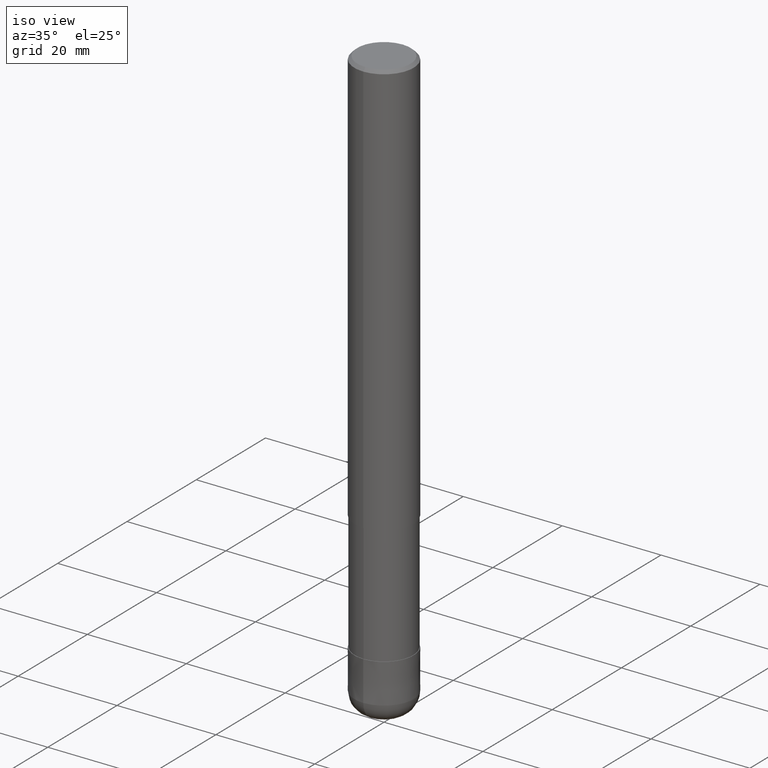
[diagram: clean part render]
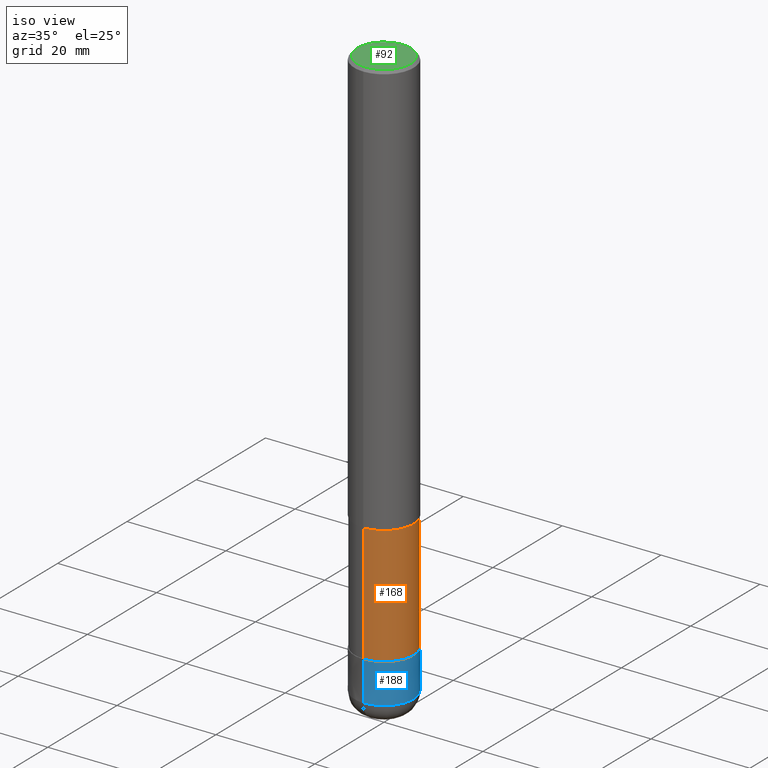
[diagram: same view with three faces highlighted in distinct colors, each labeled with its STEP entity id]
A machine part, iso view with three faces highlighted in distinct colors.
Their STEP definitions:

[orange] entity #168 — the highlighted cylindrical surface (edge-blend (fillet) strip) has radius 5.91 mm, axis along (-0, -0, 1).
#140=EDGE_CURVE('',#208,#144,#283,.T.);
#144=VERTEX_POINT('',#287);
#150=EDGE_CURVE('',#206,#144,#294,.T.);
#168=ADVANCED_FACE('',(#313),#314,.T.);
#170=EDGE_CURVE('',#174,#206,#316,.T.);
#174=VERTEX_POINT('',#322);
#182=EDGE_CURVE('',#208,#174,#331,.T.);
#206=VERTEX_POINT('',#359);
#208=VERTEX_POINT('',#361);
#283=CIRCLE('',#442,5.90995);
#287=CARTESIAN_POINT('',(7.23736232077256E-016,-5.90995,-84.0));
#294=LINE('',#455,#456);
#313=FACE_OUTER_BOUND('',#478,.T.);
#314=CYLINDRICAL_SURFACE('',#479,5.90995);
#316=CIRCLE('',#482,5.90995);
#322=CARTESIAN_POINT('',(0.0,5.90995,-108.0));
#331=LINE('',#499,#500);
#359=CARTESIAN_POINT('',(7.23736232077256E-016,-5.90995,-108.0));
#361=CARTESIAN_POINT('',(0.0,5.90995,-84.0));
#442=AXIS2_PLACEMENT_3D('',#614,#615,#616);
#455=CARTESIAN_POINT('',(7.23736232077256E-016,-5.90995,-96.0));
#456=VECTOR('',#628,1.0);
#478=EDGE_LOOP('',(#644,#645,#646,#647));
#479=AXIS2_PLACEMENT_3D('',#648,#649,#650);
#482=AXIS2_PLACEMENT_3D('',#651,#652,#653);
#499=CARTESIAN_POINT('',(-7.23736232077256E-016,5.90995,-96.0));
#500=VECTOR('',#673,1.0);
#614=CARTESIAN_POINT('',(0.0,0.0,-84.0));
#615=DIRECTION('',(0.0,0.0,-1.0));
#616=DIRECTION('',(0.0,1.0,0.0));
#628=DIRECTION('',(-0.0,-0.0,1.0));
#644=ORIENTED_EDGE('',*,*,#182,.F.);
#645=ORIENTED_EDGE('',*,*,#140,.T.);
#646=ORIENTED_EDGE('',*,*,#150,.F.);
#647=ORIENTED_EDGE('',*,*,#170,.F.);
#648=CARTESIAN_POINT('',(0.0,0.0,-96.0));
#649=DIRECTION('',(-0.0,-0.0,1.0));
#650=DIRECTION('',(0.0,1.0,0.0));
#651=CARTESIAN_POINT('',(0.0,0.0,-108.0));
#652=DIRECTION('',(0.0,0.0,-1.0));
#653=DIRECTION('',(0.0,1.0,0.0));
#673=DIRECTION('',(0.0,0.0,-1.0));

[blue] entity #188 — the highlighted conical surface has half-angle 0.001 deg.
#106=EDGE_CURVE('',#156,#108,#245,.T.);
#108=VERTEX_POINT('',#247);
#110=EDGE_CURVE('',#108,#118,#249,.T.);
#118=VERTEX_POINT('',#257);
#134=VERTEX_POINT('',#276);
#156=VERTEX_POINT('',#301);
#166=EDGE_CURVE('',#134,#156,#311,.T.);
#188=ADVANCED_FACE('',(#337),#338,.T.);
#198=EDGE_CURVE('',#134,#118,#350,.T.);
#245=CIRCLE('',#392,6.0);
#247=CARTESIAN_POINT('',(7.34763812293427E-016,-6.0,-116.0));
#249=LINE('',#397,#398);
#257=CARTESIAN_POINT('',(7.34751566229888E-016,-5.9999,-108.0));
#276=CARTESIAN_POINT('',(0.0,5.9999,-108.0));
#301=CARTESIAN_POINT('',(0.0,6.0,-116.0));
#311=LINE('',#475,#476);
#337=FACE_OUTER_BOUND('',#507,.T.);
#338=CONICAL_SURFACE('',#508,5.99995,1.24999999993198E-005);
#350=CIRCLE('',#524,5.9999);
#392=AXIS2_PLACEMENT_3D('',#561,#562,#563);
#397=CARTESIAN_POINT('',(7.34757689261657E-016,-5.99995,-112.0));
#398=VECTOR('',#564,1.0);
#475=CARTESIAN_POINT('',(-7.34757689261657E-016,5.99995,-112.0));
#476=VECTOR('',#642,1.0);
#507=EDGE_LOOP('',(#678,#679,#680,#681));
#508=AXIS2_PLACEMENT_3D('',#682,#683,#684);
#524=AXIS2_PLACEMENT_3D('',#703,#704,#705);
#561=CARTESIAN_POINT('',(0.0,0.0,-116.0));
#562=DIRECTION('',(0.0,0.0,-1.0));
#563=DIRECTION('',(0.0,1.0,0.0));
#564=DIRECTION('',(-1.53075794215481E-021,1.24999999989943E-005,0.999999999921875));
#642=DIRECTION('',(-1.53075794215481E-021,1.24999999989943E-005,-0.999999999921875));
#678=ORIENTED_EDGE('',*,*,#166,.F.);
#679=ORIENTED_EDGE('',*,*,#198,.T.);
#680=ORIENTED_EDGE('',*,*,#110,.F.);
#681=ORIENTED_EDGE('',*,*,#106,.F.);
#682=CARTESIAN_POINT('',(0.0,0.0,-112.0));
#683=DIRECTION('',(0.0,-0.0,-1.0));
#684=DIRECTION('',(0.0,1.0,0.0));
#703=CARTESIAN_POINT('',(0.0,0.0,-108.0));
#704=DIRECTION('',(0.0,0.0,-1.0));
#705=DIRECTION('',(0.0,1.0,0.0));

[green] entity #92 — the highlighted planar face has unit normal (-0, 0, 1).
#92=ADVANCED_FACE('',(#229),#230,.T.);
#114=VERTEX_POINT('',#253);
#158=VERTEX_POINT('',#303);
#164=EDGE_CURVE('',#158,#114,#309,.T.);
#194=EDGE_CURVE('',#114,#158,#345,.T.);
#229=FACE_OUTER_BOUND('',#374,.T.);
#230=PLANE('',#375);
#253=CARTESIAN_POINT('',(0.0,5.4,0.0));
#303=CARTESIAN_POINT('',(6.61287431064084E-016,-5.4,0.0));
#309=CIRCLE('',#472,5.4);
#345=CIRCLE('',#518,5.4);
#374=EDGE_LOOP('',(#541,#542));
#375=AXIS2_PLACEMENT_3D('',#543,#544,#545);
#472=AXIS2_PLACEMENT_3D('',#639,#640,#641);
#518=AXIS2_PLACEMENT_3D('',#692,#693,#694);
#541=ORIENTED_EDGE('',*,*,#194,.F.);
#542=ORIENTED_EDGE('',*,*,#164,.F.);
#543=CARTESIAN_POINT('',(0.0,2.7,0.0));
#544=DIRECTION('',(-0.0,0.0,1.0));
#545=DIRECTION('',(0.0,-1.0,0.0));
#639=CARTESIAN_POINT('',(0.0,0.0,0.0));
#640=DIRECTION('',(0.0,0.0,-1.0));
#641=DIRECTION('',(0.0,1.0,0.0));
#692=CARTESIAN_POINT('',(0.0,0.0,0.0));
#693=DIRECTION('',(0.0,0.0,-1.0));
#694=DIRECTION('',(0.0,1.0,0.0));